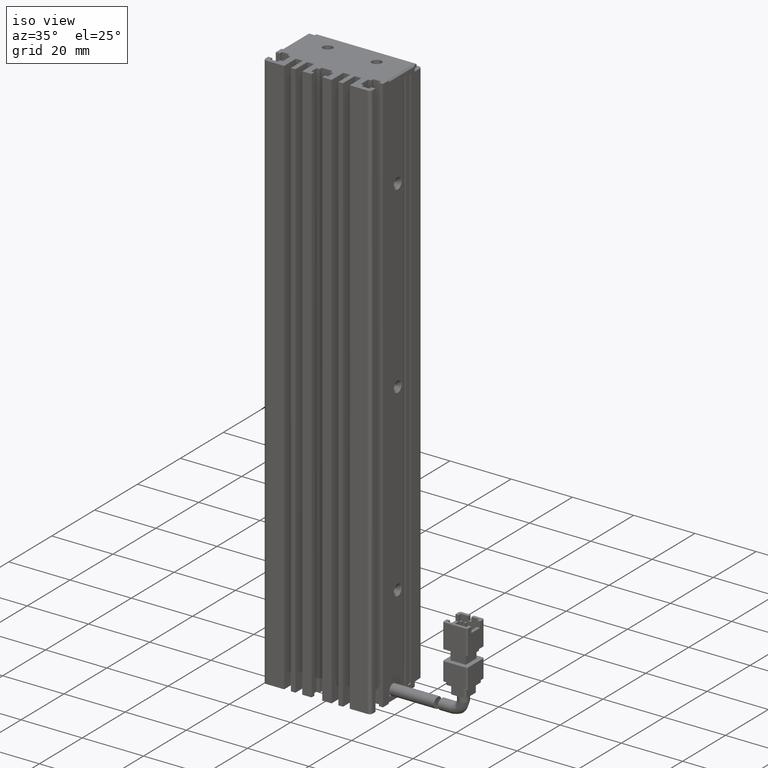
[diagram: clean part render]
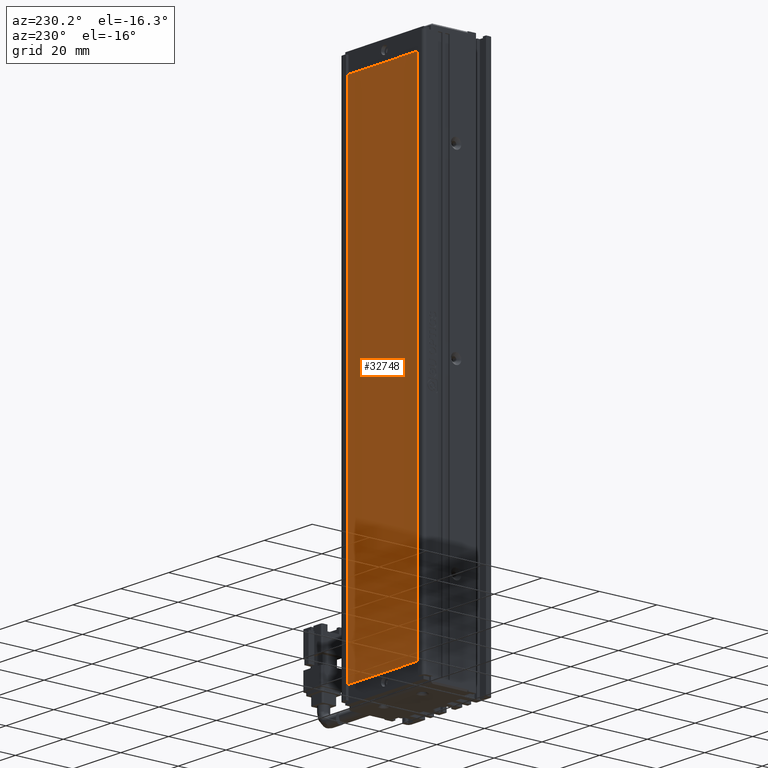
[diagram: tour spotlight — one face highlighted and labeled with its STEP entity id]
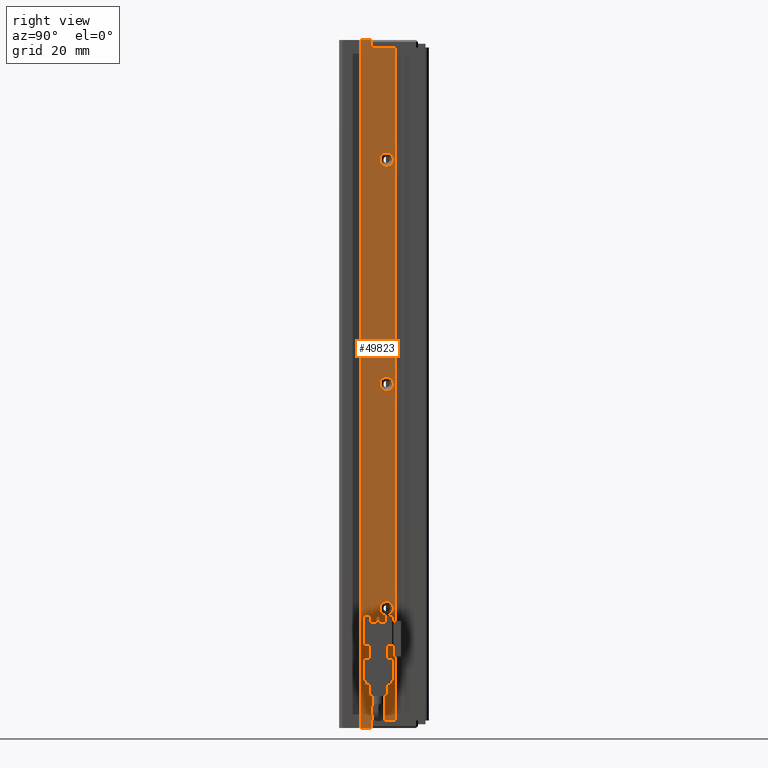
[diagram: tour spotlight — one face highlighted and labeled with its STEP entity id]
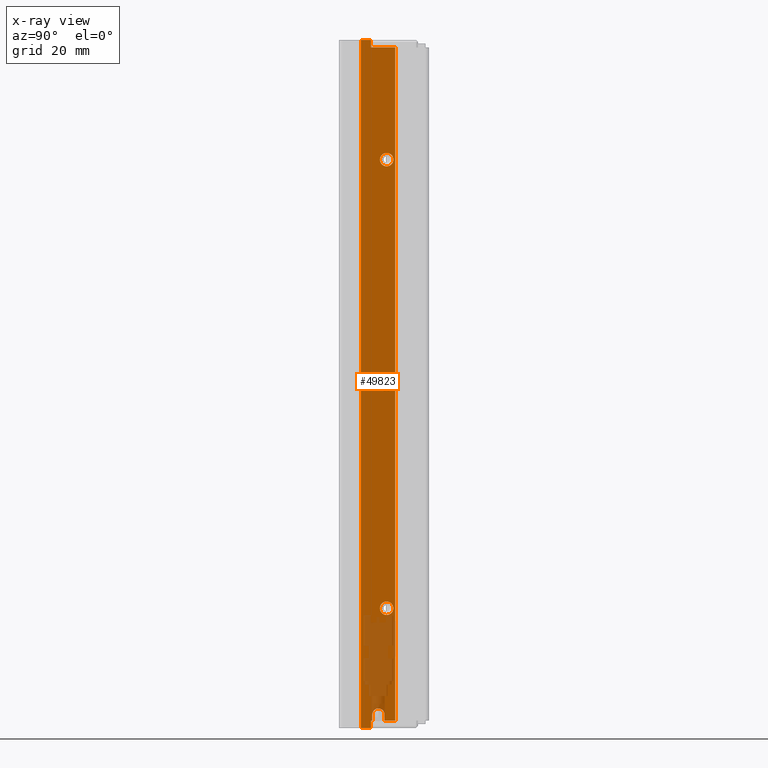
[diagram: x-ray of the same camera — body ghosted, this tour face saturated]
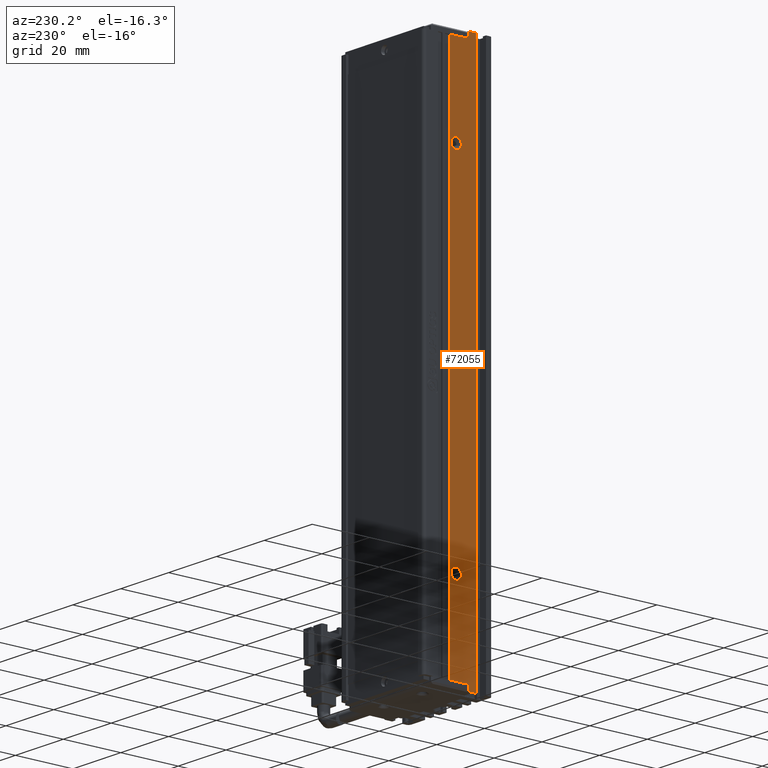
[diagram: tour spotlight — one face highlighted and labeled with its STEP entity id]
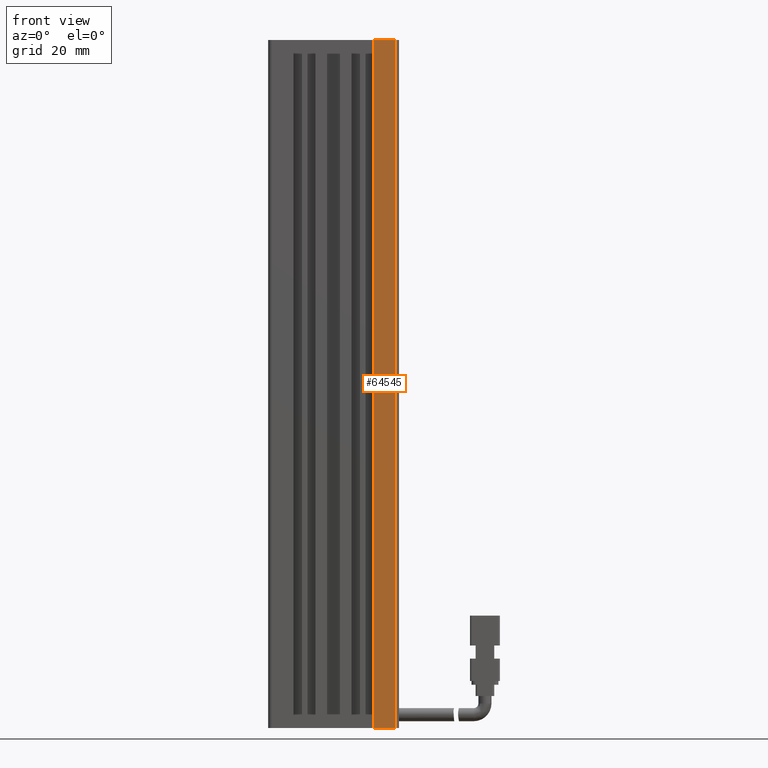
[diagram: tour spotlight — one face highlighted and labeled with its STEP entity id]
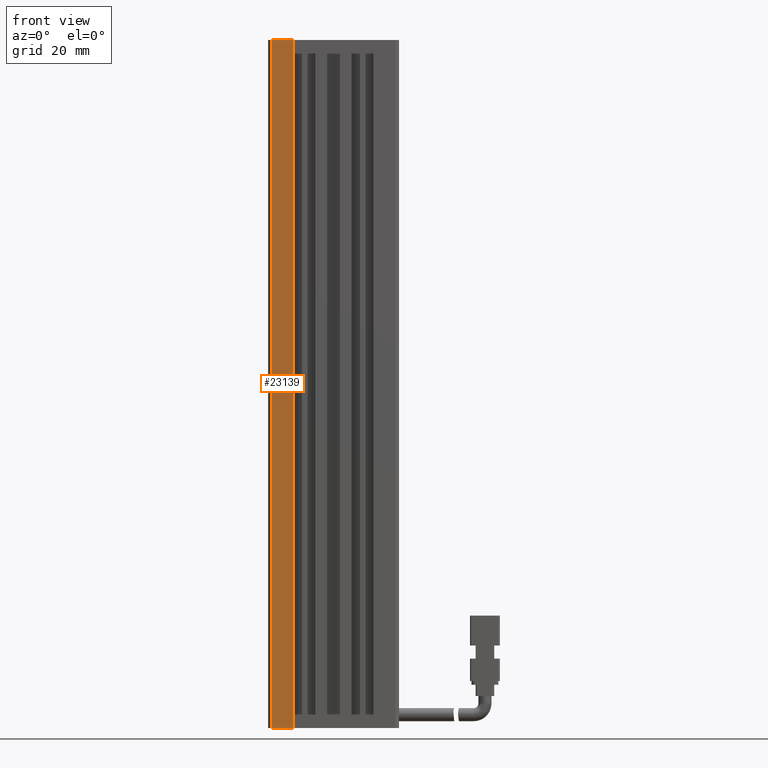
[diagram: tour spotlight — one face highlighted and labeled with its STEP entity id]
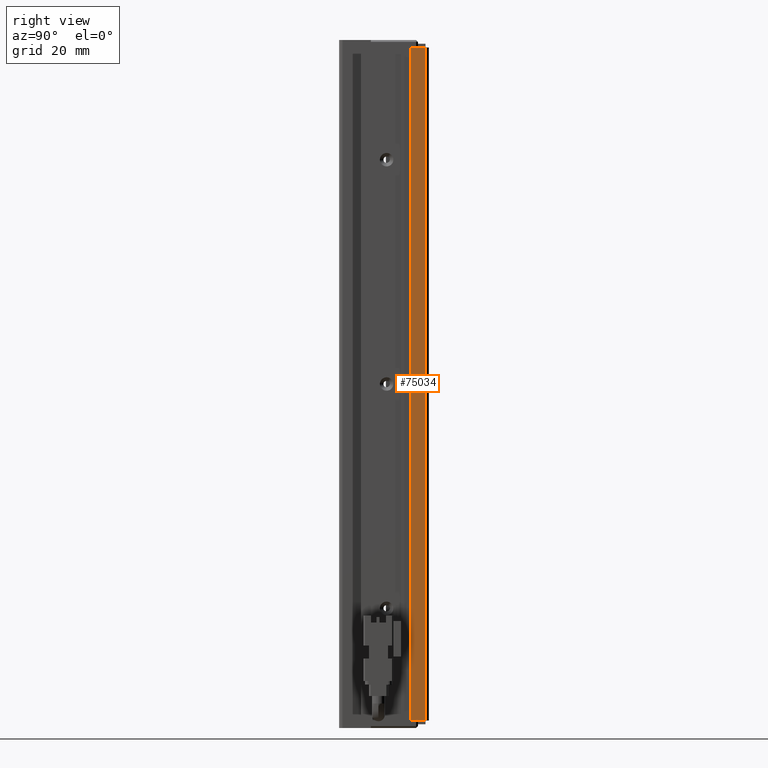
[diagram: tour spotlight — one face highlighted and labeled with its STEP entity id]
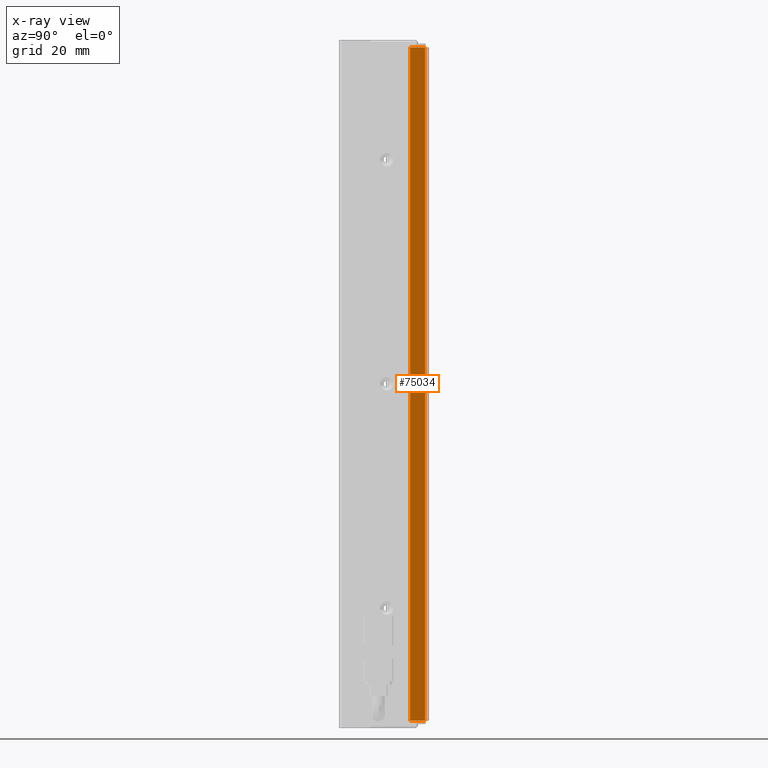
[diagram: x-ray of the same camera — body ghosted, this tour face saturated]
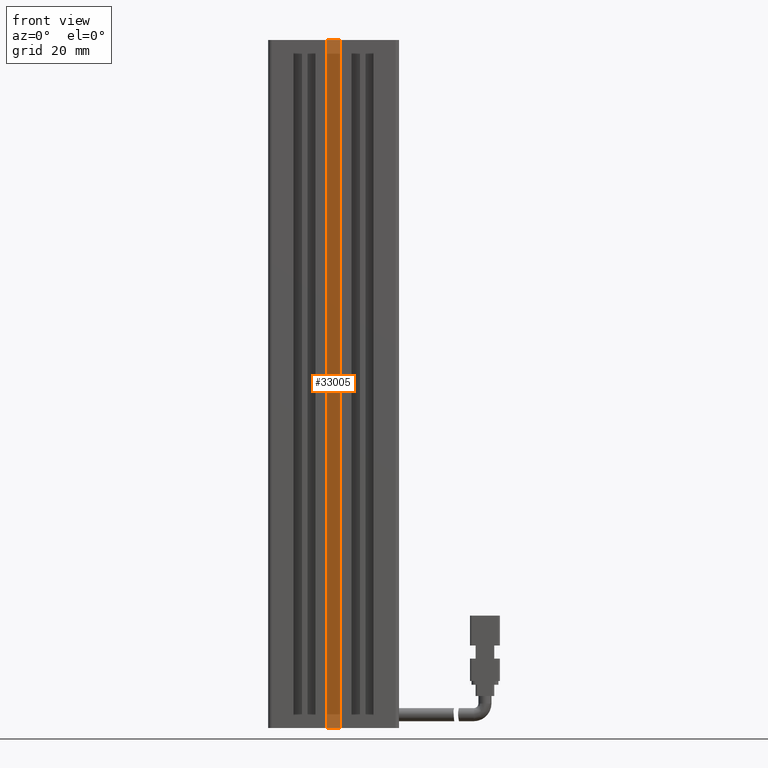
[diagram: tour spotlight — one face highlighted and labeled with its STEP entity id]
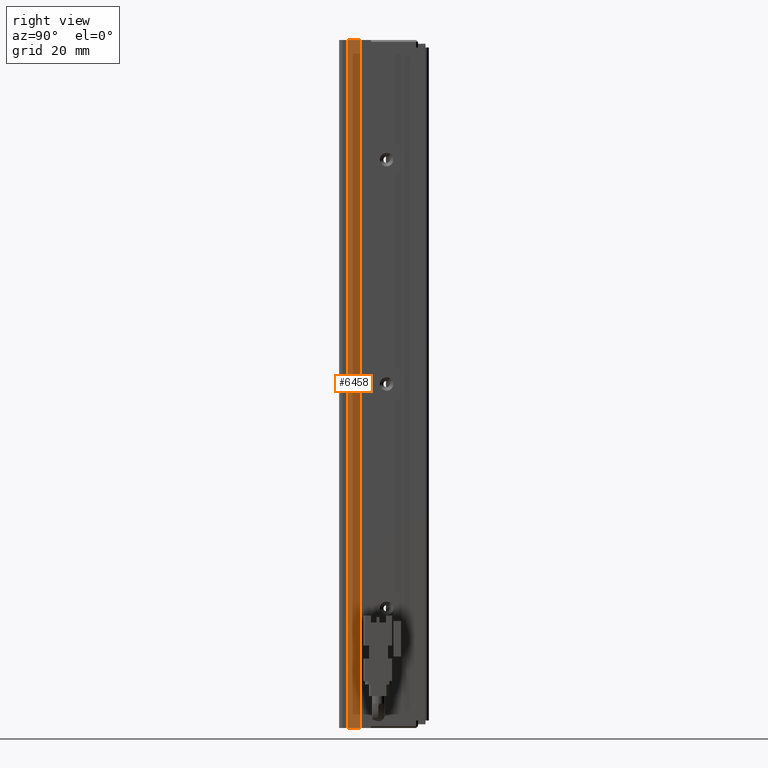
[diagram: tour spotlight — one face highlighted and labeled with its STEP entity id]
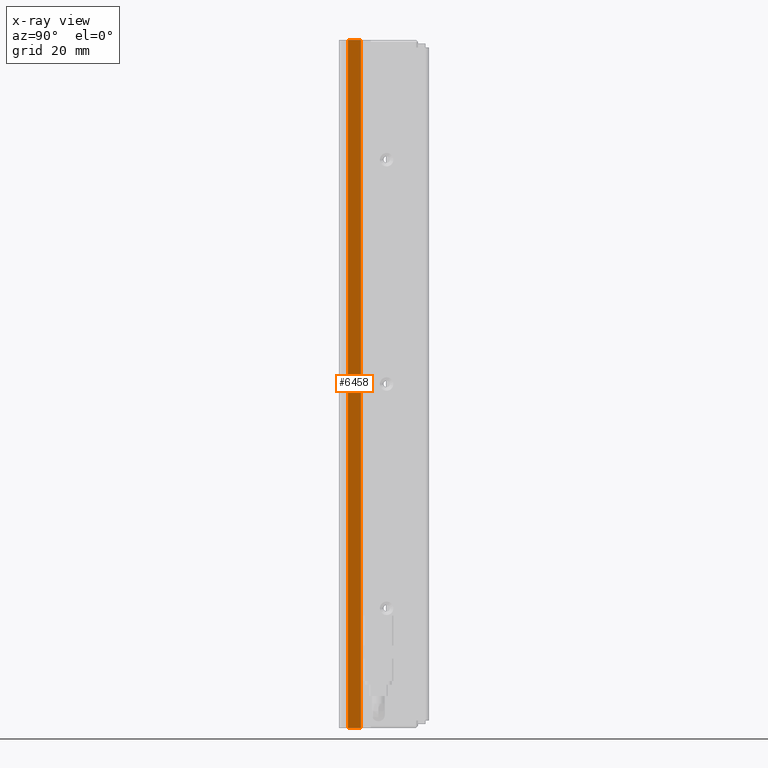
[diagram: x-ray of the same camera — body ghosted, this tour face saturated]
A machine part: a face-by-face anatomy tour. The part has 1721 B-rep faces; the first image is the clean iso view, then the 8 largest visible faces are spotlighted one at a time (largest first), each with its STEP entity span.

Face 1 — auxiliary view, entity #32748. In plain terms, the highlighted planar face has unit normal (0, 1, 0).
Definition (entity closure, byte-faithful):
#1154 = LINE ( 'NONE', #66181, #8746 ) ;
#5090 = ORIENTED_EDGE ( 'NONE', *, *, #13516, .T. ) ;
#8746 = VECTOR ( 'NONE', #60288, 1000.000000000000000 ) ;
#10738 = CARTESIAN_POINT ( 'NONE',  ( 25.93512251846635100, 34.29073232304837400, -30.53415309237264500 ) ) ;
#12682 = VERTEX_POINT ( 'NONE', #63379 ) ;
#13516 = EDGE_CURVE ( 'NONE', #58869, #12682, #1154, .T. ) ;
#14053 = LINE ( 'NONE', #27444, #28375 ) ;
#18898 = VECTOR ( 'NONE', #54965, 1000.000000000000000 ) ;
#19822 = VECTOR ( 'NONE', #47434, 1000.000000000000000 ) ;
#22951 = CARTESIAN_POINT ( 'NONE',  ( 25.93512251846635100, 34.29073232304837400, -30.53415309237264500 ) ) ;
#26302 = DIRECTION ( 'NONE',  ( 0.0000000000000000000, 1.000000000000000000, 0.0000000000000000000 ) ) ;
#27444 = CARTESIAN_POINT ( 'NONE',  ( 25.93512251846632900, 34.29073232304837400, -200.5341530923726600 ) ) ;
#28375 = VECTOR ( 'NONE', #51730, 1000.000000000000000 ) ;
#32748 = ADVANCED_FACE ( 'NONE', ( #45679 ), #68385, .T. ) ;
#32812 = EDGE_LOOP ( 'NONE', ( #68493, #5090, #77369, #69553 ) ) ;
#43367 = EDGE_CURVE ( 'NONE', #50928, #58869, #76067, .T. ) ;
#45679 = FACE_OUTER_BOUND ( 'NONE', #32812, .T. ) ;
#47434 = DIRECTION ( 'NONE',  ( 1.000000000000000000, 0.0000000000000000000, 0.0000000000000000000 ) ) ;
#49878 = AXIS2_PLACEMENT_3D ( 'NONE', #62485, #26302, #62761 ) ;
#50928 = VERTEX_POINT ( 'NONE', #76362 ) ;
#51730 = DIRECTION ( 'NONE',  ( 1.224510688924804800E-016, 0.0000000000000000000, 1.000000000000000000 ) ) ;
#54965 = DIRECTION ( 'NONE',  ( 0.0000000000000000000, 0.0000000000000000000, -1.000000000000000000 ) ) ;
#58869 = VERTEX_POINT ( 'NONE', #75019 ) ;
#60288 = DIRECTION ( 'NONE',  ( -1.000000000000000000, 0.0000000000000000000, 0.0000000000000000000 ) ) ;
#61836 = CARTESIAN_POINT ( 'NONE',  ( 55.93512251846632900, 34.29073232304837400, -30.53415309237264500 ) ) ;
#62485 = CARTESIAN_POINT ( 'NONE',  ( 0.0000000000000000000, 34.29073232304837400, 0.0000000000000000000 ) ) ;
#62761 = DIRECTION ( 'NONE',  ( 0.0000000000000000000, -0.0000000000000000000, 1.000000000000000000 ) ) ;
#63379 = CARTESIAN_POINT ( 'NONE',  ( 25.93512251846632900, 34.29073232304837400, -200.5341530923726600 ) ) ;
#63424 = EDGE_CURVE ( 'NONE', #12682, #72988, #14053, .T. ) ;
#66181 = CARTESIAN_POINT ( 'NONE',  ( 55.93512251846632900, 34.29073232304837400, -200.5341530923726600 ) ) ;
#67284 = EDGE_CURVE ( 'NONE', #72988, #50928, #70370, .T. ) ;
#68385 = PLANE ( 'NONE',  #49878 ) ;
#68493 = ORIENTED_EDGE ( 'NONE', *, *, #43367, .T. ) ;
#69553 = ORIENTED_EDGE ( 'NONE', *, *, #67284, .T. ) ;
#70370 = LINE ( 'NONE', #22951, #19822 ) ;
#72988 = VERTEX_POINT ( 'NONE', #10738 ) ;
#75019 = CARTESIAN_POINT ( 'NONE',  ( 55.93512251846632900, 34.29073232304837400, -200.5341530923726600 ) ) ;
#76067 = LINE ( 'NONE', #61836, #18898 ) ;
#76362 = CARTESIAN_POINT ( 'NONE',  ( 55.93512251846632900, 34.29073232304837400, -30.53415309237264500 ) ) ;
#77369 = ORIENTED_EDGE ( 'NONE', *, *, #63424, .T. ) ;

Face 2 — right view, entity #49823. An x-ray twin of the same camera follows (body ghosted, this face saturated) — the face is partly hidden behind the body. In plain terms, the highlighted planar face has unit normal (-1, 0, 0).
Definition (entity closure, byte-faithful):
#2157 = CARTESIAN_POINT ( 'NONE',  ( 58.42537974683542500, 25.99073232304837700, -205.0000000000000300 ) ) ;
#3171 = ORIENTED_EDGE ( 'NONE', *, *, #4362, .T. ) ;
#3521 = VERTEX_POINT ( 'NONE', #37839 ) ;
#4362 = EDGE_CURVE ( 'NONE', #64369, #72195, #54547, .T. ) ;
#4911 = VERTEX_POINT ( 'NONE', #27718 ) ;
#5736 = FACE_OUTER_BOUND ( 'NONE', #64731, .T. ) ;
#6306 = VERTEX_POINT ( 'NONE', #57838 ) ;
#6882 = CARTESIAN_POINT ( 'NONE',  ( 58.42537974683542500, 25.99073232304837700, -23.00000000000000700 ) ) ;
#7171 = CARTESIAN_POINT ( 'NONE',  ( 58.42537974683542500, 19.49073232304837000, -22.99999999999999300 ) ) ;
#8067 = CARTESIAN_POINT ( 'NONE',  ( 58.42537974687635200, 23.69073232304837300, -116.8000000000597500 ) ) ;
#9161 = DIRECTION ( 'NONE',  ( 1.000000000000000000, 0.0000000000000000000, 0.0000000000000000000 ) ) ;
#9857 = AXIS2_PLACEMENT_3D ( 'NONE', #13528, #26315, #74485 ) ;
#10019 = DIRECTION ( 'NONE',  ( -0.0000000000000000000, 0.0000000000000000000, 1.000000000000000000 ) ) ;
#10352 = CIRCLE ( 'NONE', #57596, 1.800000000000634400 ) ;
#10812 = CARTESIAN_POINT ( 'NONE',  ( 58.42537974683541800, 23.14073232304837200, -203.4500000000000200 ) ) ;
#11545 = EDGE_CURVE ( 'NONE', #4911, #49703, #23772, .T. ) ;
#11555 = CARTESIAN_POINT ( 'NONE',  ( 58.42537974683542500, 7.083797468354437600, -23.00000000000000700 ) ) ;
#11629 = EDGE_CURVE ( 'NONE', #12416, #51153, #77992, .T. ) ;
#12198 = CIRCLE ( 'NONE', #46836, 1.800000000005186300 ) ;
#12416 = VERTEX_POINT ( 'NONE', #18926 ) ;
#12452 = LINE ( 'NONE', #37724, #42950 ) ;
#13528 = CARTESIAN_POINT ( 'NONE',  ( 58.42537974681950900, 23.69073232304836900, -55.00000000000000700 ) ) ;
#13615 = ORIENTED_EDGE ( 'NONE', *, *, #44215, .F. ) ;
#14432 = ORIENTED_EDGE ( 'NONE', *, *, #56520, .F. ) ;
#15537 = CARTESIAN_POINT ( 'NONE',  ( 58.42537974683542500, 19.49073232304837000, -23.00000000000000700 ) ) ;
#15986 = AXIS2_PLACEMENT_3D ( 'NONE', #67899, #18867, #50337 ) ;
#17448 = ORIENTED_EDGE ( 'NONE', *, *, #71468, .F. ) ;
#17635 = LINE ( 'NONE', #6882, #22409 ) ;
#17870 = DIRECTION ( 'NONE',  ( 0.0000000000000000000, 0.0000000000000000000, -1.000000000000000000 ) ) ;
#18867 = DIRECTION ( 'NONE',  ( 1.000000000000000000, 0.0000000000000000000, 0.0000000000000000000 ) ) ;
#18926 = CARTESIAN_POINT ( 'NONE',  ( 58.42537974681950900, 23.69073232304836900, -176.8000000000051800 ) ) ;
#19357 = DIRECTION ( 'NONE',  ( -0.0000000000000000000, -0.0000000000000000000, -1.000000000000000000 ) ) ;
#20624 = DIRECTION ( 'NONE',  ( 0.0000000000000000000, 0.0000000000000000000, 1.000000000000000000 ) ) ;
#20927 = FACE_BOUND ( 'NONE', #41268, .T. ) ;
#21348 = LINE ( 'NONE', #11555, #46127 ) ;
#21382 = PLANE ( 'NONE',  #77771 ) ;
#21913 = FACE_BOUND ( 'NONE', #64342, .T. ) ;
#22327 = VERTEX_POINT ( 'NONE', #38947 ) ;
#22409 = VECTOR ( 'NONE', #19357, 1000.000000000000000 ) ;
#23772 = LINE ( 'NONE', #36636, #60010 ) ;
#25266 = LINE ( 'NONE', #50898, #70088 ) ;
#25504 = VECTOR ( 'NONE', #10019, 1000.000000000000000 ) ;
#26315 = DIRECTION ( 'NONE',  ( 1.000000000000000000, 0.0000000000000000000, 0.0000000000000000000 ) ) ;
#26372 = DIRECTION ( 'NONE',  ( 0.0000000000000000000, 1.000000000000000000, -0.0000000000000000000 ) ) ;
#26947 = CARTESIAN_POINT ( 'NONE',  ( 58.42537974681950900, 23.69073232304836900, -53.19999999999937000 ) ) ;
#27184 = CARTESIAN_POINT ( 'NONE',  ( 58.42537974683542500, 19.84073232304837100, -205.0000000000000300 ) ) ;
#27299 = DIRECTION ( 'NONE',  ( -1.000000000000000000, 0.0000000000000000000, 0.0000000000000000000 ) ) ;
#27398 = VERTEX_POINT ( 'NONE', #75374 ) ;
#27718 = CARTESIAN_POINT ( 'NONE',  ( 58.42537974683542500, 19.84073232304836800, -205.0000000000000300 ) ) ;
#27800 = EDGE_CURVE ( 'NONE', #56242, #6306, #44167, .T. ) ;
#28518 = ORIENTED_EDGE ( 'NONE', *, *, #55199, .T. ) ;
#28721 = EDGE_CURVE ( 'NONE', #27398, #36325, #10352, .T. ) ;
#29011 = DIRECTION ( 'NONE',  ( 1.000000000000000000, 0.0000000000000000000, 0.0000000000000000000 ) ) ;
#29279 = DIRECTION ( 'NONE',  ( 0.0000000000000000000, 0.0000000000000000000, -1.000000000000000000 ) ) ;
#31216 = EDGE_CURVE ( 'NONE', #36325, #27398, #50599, .T. ) ;
#32138 = DIRECTION ( 'NONE',  ( -0.0000000000000000000, -1.000000000000000000, 0.0000000000000000000 ) ) ;
#32224 = EDGE_CURVE ( 'NONE', #4911, #68537, #54446, .T. ) ;
#32895 = VERTEX_POINT ( 'NONE', #65424 ) ;
#33479 = CIRCLE ( 'NONE', #56109, 1.800000000059753800 ) ;
#33752 = ORIENTED_EDGE ( 'NONE', *, *, #28721, .F. ) ;
#35370 = ORIENTED_EDGE ( 'NONE', *, *, #43973, .F. ) ;
#35984 = CARTESIAN_POINT ( 'NONE',  ( 58.42537974681950900, 23.69073232304836900, -175.0000000000000000 ) ) ;
#36263 = FACE_BOUND ( 'NONE', #76310, .T. ) ;
#36325 = VERTEX_POINT ( 'NONE', #26947 ) ;
#36636 = CARTESIAN_POINT ( 'NONE',  ( 58.42537974683542500, 7.083797468354437600, -205.0000000000000300 ) ) ;
#36776 = DIRECTION ( 'NONE',  ( 0.0000000000000000000, 0.0000000000000000000, -1.000000000000000000 ) ) ;
#37724 = CARTESIAN_POINT ( 'NONE',  ( 58.42537974683542500, 7.083797468354437600, -207.0000000000000300 ) ) ;
#37839 = CARTESIAN_POINT ( 'NONE',  ( 58.42537974683542500, 19.49073232304837000, -207.0000000000000300 ) ) ;
#38256 = EDGE_CURVE ( 'NONE', #62322, #68537, #65174, .T. ) ;
#38947 = CARTESIAN_POINT ( 'NONE',  ( 58.42537974683542500, 16.79073232304836700, -22.99999999999999300 ) ) ;
#39305 = DIRECTION ( 'NONE',  ( 0.0000000000000000000, 0.0000000000000000000, -1.000000000000000000 ) ) ;
#40650 = ORIENTED_EDGE ( 'NONE', *, *, #32224, .T. ) ;
#41268 = EDGE_LOOP ( 'NONE', ( #33752, #45455 ) ) ;
#42667 = EDGE_CURVE ( 'NONE', #64476, #56108, #33479, .T. ) ;
#42950 = VECTOR ( 'NONE', #32138, 1000.000000000000000 ) ;
#43119 = DIRECTION ( 'NONE',  ( 1.000000000000000000, 0.0000000000000000000, 0.0000000000000000000 ) ) ;
#43196 = DIRECTION ( 'NONE',  ( 1.000000000000000000, 0.0000000000000000000, 0.0000000000000000000 ) ) ;
#43973 = EDGE_CURVE ( 'NONE', #56108, #64476, #54616, .T. ) ;
#44167 = LINE ( 'NONE', #55893, #63239 ) ;
#44215 = EDGE_CURVE ( 'NONE', #32895, #22327, #66915, .T. ) ;
#45455 = ORIENTED_EDGE ( 'NONE', *, *, #31216, .F. ) ;
#45509 = DIRECTION ( 'NONE',  ( 0.0000000000000000000, 0.0000000000000000000, 1.000000000000000000 ) ) ;
#45683 = DIRECTION ( 'NONE',  ( -0.0000000000000000000, 0.0000000000000000000, 1.000000000000000000 ) ) ;
#45991 = ORIENTED_EDGE ( 'NONE', *, *, #11545, .F. ) ;
#46127 = VECTOR ( 'NONE', #77551, 1000.000000000000000 ) ;
#46225 = ORIENTED_EDGE ( 'NONE', *, *, #77646, .F. ) ;
#46836 = AXIS2_PLACEMENT_3D ( 'NONE', #35984, #43119, #36776 ) ;
#46929 = DIRECTION ( 'NONE',  ( 1.000000000000000000, 5.687617954022316600E-016, -0.0000000000000000000 ) ) ;
#47766 = ORIENTED_EDGE ( 'NONE', *, *, #38256, .F. ) ;
#49699 = EDGE_CURVE ( 'NONE', #3521, #32895, #12452, .T. ) ;
#49703 = VERTEX_POINT ( 'NONE', #74659 ) ;
#49823 = ADVANCED_FACE ( 'NONE', ( #21913, #36263, #5736, #20927 ), #21382, .F. ) ;
#50337 = DIRECTION ( 'NONE',  ( 0.0000000000000000000, 0.0000000000000000000, -1.000000000000000000 ) ) ;
#50599 = CIRCLE ( 'NONE', #9857, 1.800000000000634400 ) ;
#50716 = CARTESIAN_POINT ( 'NONE',  ( 58.42537974683542500, 19.49073232304837000, -24.99999999999999300 ) ) ;
#50753 = VECTOR ( 'NONE', #45509, 1000.000000000000000 ) ;
#50898 = CARTESIAN_POINT ( 'NONE',  ( 58.42537974683542500, 7.083797468354437600, -25.00000000000000700 ) ) ;
#51153 = VERTEX_POINT ( 'NONE', #55284 ) ;
#52589 = DIRECTION ( 'NONE',  ( 0.0000000000000000000, 1.000000000000000000, 0.0000000000000000000 ) ) ;
#53944 = CARTESIAN_POINT ( 'NONE',  ( 58.42537974683542500, 23.14073232304836500, -205.0000000000000300 ) ) ;
#54446 = LINE ( 'NONE', #27184, #73470 ) ;
#54547 = LINE ( 'NONE', #15537, #74537 ) ;
#54616 = CIRCLE ( 'NONE', #15986, 1.800000000059753800 ) ;
#54978 = DIRECTION ( 'NONE',  ( -0.0000000000000000000, -1.000000000000000000, 0.0000000000000000000 ) ) ;
#55199 = EDGE_CURVE ( 'NONE', #3521, #49703, #62725, .T. ) ;
#55284 = CARTESIAN_POINT ( 'NONE',  ( 58.42537974681950900, 23.69073232304836900, -173.1999999999948200 ) ) ;
#55517 = CARTESIAN_POINT ( 'NONE',  ( 58.42537974683541800, 19.84073232304836800, -203.4500000000000200 ) ) ;
#55893 = CARTESIAN_POINT ( 'NONE',  ( 58.42537974683542500, 7.083797468354437600, -205.0000000000000300 ) ) ;
#55978 = ORIENTED_EDGE ( 'NONE', *, *, #11629, .F. ) ;
#56108 = VERTEX_POINT ( 'NONE', #74030 ) ;
#56109 = AXIS2_PLACEMENT_3D ( 'NONE', #59601, #29011, #29279 ) ;
#56242 = VERTEX_POINT ( 'NONE', #2157 ) ;
#56520 = EDGE_CURVE ( 'NONE', #78653, #56242, #17635, .T. ) ;
#56796 = EDGE_CURVE ( 'NONE', #62322, #6306, #66138, .T. ) ;
#57596 = AXIS2_PLACEMENT_3D ( 'NONE', #73784, #43196, #17870 ) ;
#57838 = CARTESIAN_POINT ( 'NONE',  ( 58.42537974683542500, 23.14073232304836500, -205.0000000000000300 ) ) ;
#58401 = ORIENTED_EDGE ( 'NONE', *, *, #42667, .F. ) ;
#59193 = CARTESIAN_POINT ( 'NONE',  ( 58.42537974683541800, 21.49073232304837000, -203.4500000000000200 ) ) ;
#59601 = CARTESIAN_POINT ( 'NONE',  ( 58.42537974687635200, 23.69073232304837300, -115.0000000000000000 ) ) ;
#60010 = VECTOR ( 'NONE', #54978, 1000.000000000000000 ) ;
#61150 = AXIS2_PLACEMENT_3D ( 'NONE', #59193, #46929, #52589 ) ;
#61292 = CARTESIAN_POINT ( 'NONE',  ( 58.42537974683542500, 25.99073232304837700, -24.99999999999999300 ) ) ;
#62322 = VERTEX_POINT ( 'NONE', #10812 ) ;
#62725 = LINE ( 'NONE', #65133, #25504 ) ;
#63105 = DIRECTION ( 'NONE',  ( -0.0000000000000000000, -1.119176436114072200E-015, 1.000000000000000000 ) ) ;
#63239 = VECTOR ( 'NONE', #67086, 1000.000000000000000 ) ;
#63376 = AXIS2_PLACEMENT_3D ( 'NONE', #75710, #9161, #39305 ) ;
#64224 = VECTOR ( 'NONE', #64892, 1000.000000000000000 ) ;
#64342 = EDGE_LOOP ( 'NONE', ( #55978, #46225 ) ) ;
#64369 = VERTEX_POINT ( 'NONE', #50716 ) ;
#64476 = VERTEX_POINT ( 'NONE', #8067 ) ;
#64731 = EDGE_LOOP ( 'NONE', ( #40650, #47766, #66774, #75591, #14432, #17448, #3171, #71083, #13615, #65817, #28518, #45991 ) ) ;
#64892 = DIRECTION ( 'NONE',  ( -0.0000000000000000000, -2.238352872228144400E-015, -1.000000000000000000 ) ) ;
#65133 = CARTESIAN_POINT ( 'NONE',  ( 58.42537974683542500, 19.49073232304837000, -23.00000000000000700 ) ) ;
#65174 = CIRCLE ( 'NONE', #61150, 1.650000000000002100 ) ;
#65424 = CARTESIAN_POINT ( 'NONE',  ( 58.42537974683542500, 16.79073232304836700, -207.0000000000000300 ) ) ;
#65817 = ORIENTED_EDGE ( 'NONE', *, *, #49699, .F. ) ;
#66138 = LINE ( 'NONE', #53944, #64224 ) ;
#66774 = ORIENTED_EDGE ( 'NONE', *, *, #56796, .T. ) ;
#66915 = LINE ( 'NONE', #69725, #50753 ) ;
#67086 = DIRECTION ( 'NONE',  ( -0.0000000000000000000, -1.000000000000000000, 0.0000000000000000000 ) ) ;
#67899 = CARTESIAN_POINT ( 'NONE',  ( 58.42537974687635200, 23.69073232304837300, -115.0000000000000000 ) ) ;
#68537 = VERTEX_POINT ( 'NONE', #55517 ) ;
#68910 = EDGE_CURVE ( 'NONE', #22327, #72195, #21348, .T. ) ;
#69725 = CARTESIAN_POINT ( 'NONE',  ( 58.42537974683542500, 16.79073232304836700, -23.00000000000000700 ) ) ;
#70088 = VECTOR ( 'NONE', #26372, 1000.000000000000000 ) ;
#71083 = ORIENTED_EDGE ( 'NONE', *, *, #68910, .F. ) ;
#71468 = EDGE_CURVE ( 'NONE', #64369, #78653, #25266, .T. ) ;
#72195 = VERTEX_POINT ( 'NONE', #7171 ) ;
#73470 = VECTOR ( 'NONE', #63105, 1000.000000000000000 ) ;
#73784 = CARTESIAN_POINT ( 'NONE',  ( 58.42537974681950900, 23.69073232304836900, -55.00000000000000700 ) ) ;
#74030 = CARTESIAN_POINT ( 'NONE',  ( 58.42537974687635200, 23.69073232304837300, -113.1999999999402500 ) ) ;
#74485 = DIRECTION ( 'NONE',  ( 0.0000000000000000000, 0.0000000000000000000, -1.000000000000000000 ) ) ;
#74537 = VECTOR ( 'NONE', #45683, 1000.000000000000000 ) ;
#74659 = CARTESIAN_POINT ( 'NONE',  ( 58.42537974683542500, 19.49073232304837000, -205.0000000000000300 ) ) ;
#75374 = CARTESIAN_POINT ( 'NONE',  ( 58.42537974681950900, 23.69073232304836900, -56.80000000000064400 ) ) ;
#75591 = ORIENTED_EDGE ( 'NONE', *, *, #27800, .F. ) ;
#75710 = CARTESIAN_POINT ( 'NONE',  ( 58.42537974681950900, 23.69073232304836900, -175.0000000000000000 ) ) ;
#76310 = EDGE_LOOP ( 'NONE', ( #58401, #35370 ) ) ;
#76508 = CARTESIAN_POINT ( 'NONE',  ( 58.42537974683542500, 7.083797468354437600, -23.00000000000000700 ) ) ;
#77551 = DIRECTION ( 'NONE',  ( 0.0000000000000000000, 1.000000000000000000, -0.0000000000000000000 ) ) ;
#77646 = EDGE_CURVE ( 'NONE', #51153, #12416, #12198, .T. ) ;
#77771 = AXIS2_PLACEMENT_3D ( 'NONE', #76508, #27299, #20624 ) ;
#77992 = CIRCLE ( 'NONE', #63376, 1.800000000005186300 ) ;
#78653 = VERTEX_POINT ( 'NONE', #61292 ) ;

Face 3 — auxiliary view, entity #72055. In plain terms, the highlighted planar face has unit normal (-1, 0, 0).
Definition (entity closure, byte-faithful):
#79 = ORIENTED_EDGE ( 'NONE', *, *, #22359, .T. ) ;
#770 = VERTEX_POINT ( 'NONE', #37750 ) ;
#1111 = CARTESIAN_POINT ( 'NONE',  ( 23.42537974683542100, 16.79073232304837400, -207.0000000000000300 ) ) ;
#1260 = FACE_OUTER_BOUND ( 'NONE', #17817, .T. ) ;
#1581 = CIRCLE ( 'NONE', #20167, 1.800000000059753800 ) ;
#2126 = EDGE_CURVE ( 'NONE', #74190, #44316, #29581, .T. ) ;
#3463 = CARTESIAN_POINT ( 'NONE',  ( 23.42537974685134100, 23.69073232304836900, -56.80000000000519100 ) ) ;
#3762 = DIRECTION ( 'NONE',  ( 0.0000000000000000000, -0.0000000000000000000, -1.000000000000000000 ) ) ;
#3854 = DIRECTION ( 'NONE',  ( 0.0000000000000000000, 0.0000000000000000000, 1.000000000000000000 ) ) ;
#7368 = VERTEX_POINT ( 'NONE', #53334 ) ;
#8285 = DIRECTION ( 'NONE',  ( -0.0000000000000000000, -0.0000000000000000000, -1.000000000000000000 ) ) ;
#9457 = DIRECTION ( 'NONE',  ( 0.0000000000000000000, 0.0000000000000000000, 1.000000000000000000 ) ) ;
#9775 = VERTEX_POINT ( 'NONE', #35599 ) ;
#9922 = EDGE_LOOP ( 'NONE', ( #76355, #26073 ) ) ;
#10023 = CARTESIAN_POINT ( 'NONE',  ( 23.42537974683542100, 16.79073232304837400, -22.99999999999999300 ) ) ;
#11399 = AXIS2_PLACEMENT_3D ( 'NONE', #20850, #75678, #51538 ) ;
#11554 = CARTESIAN_POINT ( 'NONE',  ( 23.42537974685134100, 23.69073232304836900, -176.8000000000006400 ) ) ;
#12204 = CARTESIAN_POINT ( 'NONE',  ( 23.42537974683542100, 7.083797468354437600, -205.0000000000000300 ) ) ;
#12394 = EDGE_CURVE ( 'NONE', #59545, #66803, #56809, .T. ) ;
#12718 = ORIENTED_EDGE ( 'NONE', *, *, #38167, .T. ) ;
#13613 = EDGE_CURVE ( 'NONE', #29557, #14197, #76335, .T. ) ;
#14197 = VERTEX_POINT ( 'NONE', #1111 ) ;
#15731 = DIRECTION ( 'NONE',  ( 0.0000000000000000000, 0.0000000000000000000, 1.000000000000000000 ) ) ;
#16066 = LINE ( 'NONE', #59089, #78904 ) ;
#16140 = AXIS2_PLACEMENT_3D ( 'NONE', #46380, #29105, #15731 ) ;
#17329 = DIRECTION ( 'NONE',  ( 1.000000000000000000, -0.0000000000000000000, -0.0000000000000000000 ) ) ;
#17817 = EDGE_LOOP ( 'NONE', ( #12718, #54014, #30574, #48530, #38296, #79, #40534, #31854 ) ) ;
#18573 = AXIS2_PLACEMENT_3D ( 'NONE', #34263, #57414, #9457 ) ;
#19855 = CARTESIAN_POINT ( 'NONE',  ( 23.42537974683542100, 19.49073232304836600, -22.99999999999999300 ) ) ;
#20167 = AXIS2_PLACEMENT_3D ( 'NONE', #64548, #40323, #3854 ) ;
#20850 = CARTESIAN_POINT ( 'NONE',  ( 23.42537974685134100, 23.69073232304836900, -55.00000000000000700 ) ) ;
#22359 = EDGE_CURVE ( 'NONE', #9775, #29557, #16066, .T. ) ;
#22885 = DIRECTION ( 'NONE',  ( 0.0000000000000000000, -0.0000000000000000000, -1.000000000000000000 ) ) ;
#23849 = VERTEX_POINT ( 'NONE', #30109 ) ;
#24045 = FACE_BOUND ( 'NONE', #36931, .T. ) ;
#24493 = LINE ( 'NONE', #25219, #36924 ) ;
#25160 = LINE ( 'NONE', #33187, #38605 ) ;
#25219 = CARTESIAN_POINT ( 'NONE',  ( 23.42537974683542100, 16.79073232304837400, -23.00000000000000700 ) ) ;
#26073 = ORIENTED_EDGE ( 'NONE', *, *, #71118, .T. ) ;
#28114 = PLANE ( 'NONE',  #18573 ) ;
#29105 = DIRECTION ( 'NONE',  ( 1.000000000000000000, -0.0000000000000000000, -0.0000000000000000000 ) ) ;
#29433 = EDGE_CURVE ( 'NONE', #14197, #57560, #24493, .T. ) ;
#29557 = VERTEX_POINT ( 'NONE', #75978 ) ;
#29581 = CIRCLE ( 'NONE', #61266, 1.800000000005186300 ) ;
#30109 = CARTESIAN_POINT ( 'NONE',  ( 23.42537974683542100, 25.99073232304837300, -205.0000000000000300 ) ) ;
#30574 = ORIENTED_EDGE ( 'NONE', *, *, #12394, .T. ) ;
#31854 = ORIENTED_EDGE ( 'NONE', *, *, #29433, .T. ) ;
#33187 = CARTESIAN_POINT ( 'NONE',  ( 23.42537974683542100, 7.083797468354437600, -23.00000000000000700 ) ) ;
#34263 = CARTESIAN_POINT ( 'NONE',  ( 23.42537974683542100, 7.083797468354437600, -23.00000000000000700 ) ) ;
#34294 = ORIENTED_EDGE ( 'NONE', *, *, #41273, .T. ) ;
#34762 = EDGE_CURVE ( 'NONE', #66803, #23849, #47093, .T. ) ;
#35599 = CARTESIAN_POINT ( 'NONE',  ( 23.42537974683542100, 19.49073232304836600, -205.0000000000000300 ) ) ;
#36312 = CARTESIAN_POINT ( 'NONE',  ( 23.42537974683542500, 34.99073232304837700, -25.00000000000000700 ) ) ;
#36843 = VECTOR ( 'NONE', #55434, 1000.000000000000000 ) ;
#36885 = CIRCLE ( 'NONE', #11399, 1.800000000005186300 ) ;
#36924 = VECTOR ( 'NONE', #44873, 1000.000000000000000 ) ;
#36927 = DIRECTION ( 'NONE',  ( 1.000000000000000000, -0.0000000000000000000, -0.0000000000000000000 ) ) ;
#36931 = EDGE_LOOP ( 'NONE', ( #43298, #55010 ) ) ;
#37132 = VERTEX_POINT ( 'NONE', #11554 ) ;
#37342 = VECTOR ( 'NONE', #67760, 1000.000000000000000 ) ;
#37608 = VERTEX_POINT ( 'NONE', #19855 ) ;
#37750 = CARTESIAN_POINT ( 'NONE',  ( 23.42537974685134100, 23.69073232304836900, -173.1999999999993600 ) ) ;
#38167 = EDGE_CURVE ( 'NONE', #57560, #37608, #25160, .T. ) ;
#38296 = ORIENTED_EDGE ( 'NONE', *, *, #40473, .T. ) ;
#38605 = VECTOR ( 'NONE', #64283, 1000.000000000000000 ) ;
#38897 = EDGE_CURVE ( 'NONE', #37608, #59545, #40210, .T. ) ;
#38920 = AXIS2_PLACEMENT_3D ( 'NONE', #54731, #36927, #66963 ) ;
#40210 = LINE ( 'NONE', #58848, #48747 ) ;
#40323 = DIRECTION ( 'NONE',  ( 1.000000000000000000, -0.0000000000000000000, -0.0000000000000000000 ) ) ;
#40473 = EDGE_CURVE ( 'NONE', #23849, #9775, #71145, .T. ) ;
#40534 = ORIENTED_EDGE ( 'NONE', *, *, #13613, .T. ) ;
#41273 = EDGE_CURVE ( 'NONE', #7368, #66735, #45279, .T. ) ;
#43298 = ORIENTED_EDGE ( 'NONE', *, *, #50155, .T. ) ;
#44316 = VERTEX_POINT ( 'NONE', #3463 ) ;
#44873 = DIRECTION ( 'NONE',  ( 0.0000000000000000000, 0.0000000000000000000, 1.000000000000000000 ) ) ;
#45279 = CIRCLE ( 'NONE', #16140, 1.800000000059753800 ) ;
#46380 = CARTESIAN_POINT ( 'NONE',  ( 23.42537974679449800, 23.69073232304837300, -115.0000000000000000 ) ) ;
#47093 = LINE ( 'NONE', #50945, #62273 ) ;
#47790 = CARTESIAN_POINT ( 'NONE',  ( 23.42537974683542100, 25.99073232304837300, -24.99999999999999300 ) ) ;
#47828 = EDGE_CURVE ( 'NONE', #37132, #770, #65753, .T. ) ;
#48530 = ORIENTED_EDGE ( 'NONE', *, *, #34762, .T. ) ;
#48747 = VECTOR ( 'NONE', #22885, 1000.000000000000000 ) ;
#49727 = DIRECTION ( 'NONE',  ( 1.000000000000000000, -0.0000000000000000000, -0.0000000000000000000 ) ) ;
#50155 = EDGE_CURVE ( 'NONE', #770, #37132, #59917, .T. ) ;
#50945 = CARTESIAN_POINT ( 'NONE',  ( 23.42537974683542100, 25.99073232304837300, -23.00000000000000700 ) ) ;
#51538 = DIRECTION ( 'NONE',  ( 0.0000000000000000000, 0.0000000000000000000, 1.000000000000000000 ) ) ;
#53334 = CARTESIAN_POINT ( 'NONE',  ( 23.42537974679449800, 23.69073232304837300, -113.1999999999402500 ) ) ;
#54014 = ORIENTED_EDGE ( 'NONE', *, *, #38897, .T. ) ;
#54731 = CARTESIAN_POINT ( 'NONE',  ( 23.42537974685134100, 23.69073232304836900, -175.0000000000000000 ) ) ;
#55010 = ORIENTED_EDGE ( 'NONE', *, *, #47828, .T. ) ;
#55064 = DIRECTION ( 'NONE',  ( -0.0000000000000000000, -1.000000000000000000, 0.0000000000000000000 ) ) ;
#55434 = DIRECTION ( 'NONE',  ( 0.0000000000000000000, 1.000000000000000000, 0.0000000000000000000 ) ) ;
#56809 = LINE ( 'NONE', #36312, #36843 ) ;
#57414 = DIRECTION ( 'NONE',  ( -1.000000000000000000, 0.0000000000000000000, 0.0000000000000000000 ) ) ;
#57560 = VERTEX_POINT ( 'NONE', #10023 ) ;
#58848 = CARTESIAN_POINT ( 'NONE',  ( 23.42537974683542100, 19.49073232304836600, -23.00000000000000700 ) ) ;
#59089 = CARTESIAN_POINT ( 'NONE',  ( 23.42537974683542500, 19.49073232304836600, -23.00000000000000700 ) ) ;
#59545 = VERTEX_POINT ( 'NONE', #77781 ) ;
#59917 = CIRCLE ( 'NONE', #60557, 1.800000000000634400 ) ;
#59996 = DIRECTION ( 'NONE',  ( 0.0000000000000000000, 0.0000000000000000000, 1.000000000000000000 ) ) ;
#60506 = CARTESIAN_POINT ( 'NONE',  ( 23.42537974685134100, 23.69073232304836900, -175.0000000000000000 ) ) ;
#60557 = AXIS2_PLACEMENT_3D ( 'NONE', #60506, #17329, #59996 ) ;
#61257 = FACE_BOUND ( 'NONE', #9922, .T. ) ;
#61266 = AXIS2_PLACEMENT_3D ( 'NONE', #74437, #49727, #62169 ) ;
#62169 = DIRECTION ( 'NONE',  ( 0.0000000000000000000, 0.0000000000000000000, 1.000000000000000000 ) ) ;
#62273 = VECTOR ( 'NONE', #8285, 1000.000000000000000 ) ;
#64283 = DIRECTION ( 'NONE',  ( 0.0000000000000000000, 1.000000000000000000, -0.0000000000000000000 ) ) ;
#64548 = CARTESIAN_POINT ( 'NONE',  ( 23.42537974679449800, 23.69073232304837300, -115.0000000000000000 ) ) ;
#65128 = CARTESIAN_POINT ( 'NONE',  ( 23.42537974679449800, 23.69073232304837300, -116.8000000000597500 ) ) ;
#65633 = EDGE_CURVE ( 'NONE', #66735, #7368, #1581, .T. ) ;
#65753 = CIRCLE ( 'NONE', #38920, 1.800000000000634400 ) ;
#66029 = FACE_BOUND ( 'NONE', #77916, .T. ) ;
#66735 = VERTEX_POINT ( 'NONE', #65128 ) ;
#66803 = VERTEX_POINT ( 'NONE', #47790 ) ;
#66963 = DIRECTION ( 'NONE',  ( 0.0000000000000000000, 0.0000000000000000000, 1.000000000000000000 ) ) ;
#67495 = CARTESIAN_POINT ( 'NONE',  ( 23.42537974683542100, 7.083797468354437600, -207.0000000000000300 ) ) ;
#67760 = DIRECTION ( 'NONE',  ( -0.0000000000000000000, -1.000000000000000000, 0.0000000000000000000 ) ) ;
#68585 = CARTESIAN_POINT ( 'NONE',  ( 23.42537974685134100, 23.69073232304836900, -53.19999999999482300 ) ) ;
#70249 = VECTOR ( 'NONE', #55064, 1000.000000000000000 ) ;
#71118 = EDGE_CURVE ( 'NONE', #44316, #74190, #36885, .T. ) ;
#71145 = LINE ( 'NONE', #12204, #70249 ) ;
#72055 = ADVANCED_FACE ( 'NONE', ( #1260, #66029, #61257, #24045 ), #28114, .T. ) ;
#72960 = ORIENTED_EDGE ( 'NONE', *, *, #65633, .T. ) ;
#74190 = VERTEX_POINT ( 'NONE', #68585 ) ;
#74437 = CARTESIAN_POINT ( 'NONE',  ( 23.42537974685134100, 23.69073232304836900, -55.00000000000000700 ) ) ;
#75678 = DIRECTION ( 'NONE',  ( 1.000000000000000000, -0.0000000000000000000, -0.0000000000000000000 ) ) ;
#75978 = CARTESIAN_POINT ( 'NONE',  ( 23.42537974683542100, 19.49073232304836600, -207.0000000000000300 ) ) ;
#76335 = LINE ( 'NONE', #67495, #37342 ) ;
#76355 = ORIENTED_EDGE ( 'NONE', *, *, #2126, .T. ) ;
#77781 = CARTESIAN_POINT ( 'NONE',  ( 23.42537974683542100, 19.49073232304836600, -24.99999999999999300 ) ) ;
#77916 = EDGE_LOOP ( 'NONE', ( #34294, #72960 ) ) ;
#78904 = VECTOR ( 'NONE', #3762, 1000.000000000000000 ) ;

Face 4 — front view, entity #64545. In plain terms, the highlighted planar face has unit normal (-0, 1, 0).
Definition (entity closure, byte-faithful):
#3256 = ORIENTED_EDGE ( 'NONE', *, *, #25196, .F. ) ;
#6331 = AXIS2_PLACEMENT_3D ( 'NONE', #51266, #27769, #75955 ) ;
#6384 = VERTEX_POINT ( 'NONE', #53057 ) ;
#6577 = CARTESIAN_POINT ( 'NONE',  ( 57.42537974683542500, 10.99073232304837500, -23.00000000000000700 ) ) ;
#13394 = EDGE_CURVE ( 'NONE', #62344, #6384, #67907, .T. ) ;
#19101 = EDGE_CURVE ( 'NONE', #20662, #73630, #57297, .T. ) ;
#20186 = VECTOR ( 'NONE', #28943, 1000.000000000000000 ) ;
#20662 = VERTEX_POINT ( 'NONE', #72081 ) ;
#24826 = VECTOR ( 'NONE', #67845, 1000.000000000000000 ) ;
#25196 = EDGE_CURVE ( 'NONE', #73630, #6384, #72711, .T. ) ;
#25433 = DIRECTION ( 'NONE',  ( -0.0000000000000000000, -0.0000000000000000000, -1.000000000000000000 ) ) ;
#27769 = DIRECTION ( 'NONE',  ( -7.477256361968982400E-016, 1.000000000000000000, 0.0000000000000000000 ) ) ;
#28943 = DIRECTION ( 'NONE',  ( 1.000000000000000000, 0.0000000000000000000, 0.0000000000000000000 ) ) ;
#31803 = VECTOR ( 'NONE', #25433, 1000.000000000000000 ) ;
#36609 = EDGE_LOOP ( 'NONE', ( #3256, #72210, #50790, #77470 ) ) ;
#37047 = CARTESIAN_POINT ( 'NONE',  ( 57.42537974683542500, 10.99073232304837200, -23.00000000000000700 ) ) ;
#42796 = FACE_OUTER_BOUND ( 'NONE', #36609, .T. ) ;
#45107 = PLANE ( 'NONE',  #6331 ) ;
#49561 = EDGE_CURVE ( 'NONE', #62344, #20662, #50617, .T. ) ;
#49677 = VECTOR ( 'NONE', #75869, 1000.000000000000000 ) ;
#50617 = LINE ( 'NONE', #72098, #24826 ) ;
#50790 = ORIENTED_EDGE ( 'NONE', *, *, #49561, .F. ) ;
#51266 = CARTESIAN_POINT ( 'NONE',  ( 40.92537974683542500, 10.99073232304836300, -23.00000000000000700 ) ) ;
#53057 = CARTESIAN_POINT ( 'NONE',  ( 57.42537974683542500, 10.99073232304837200, -207.0000000000000300 ) ) ;
#57297 = LINE ( 'NONE', #70029, #49677 ) ;
#62344 = VERTEX_POINT ( 'NONE', #71508 ) ;
#64545 = ADVANCED_FACE ( 'NONE', ( #42796 ), #45107, .F. ) ;
#65129 = CARTESIAN_POINT ( 'NONE',  ( 40.92537974683542500, 10.99073232304837000, -207.0000000000000300 ) ) ;
#67845 = DIRECTION ( 'NONE',  ( 0.0000000000000000000, 0.0000000000000000000, 1.000000000000000000 ) ) ;
#67907 = LINE ( 'NONE', #65129, #20186 ) ;
#70029 = CARTESIAN_POINT ( 'NONE',  ( 40.92537974683542500, 10.99073232304837000, -23.00000000000000700 ) ) ;
#71508 = CARTESIAN_POINT ( 'NONE',  ( 51.62537974683542100, 10.99073232304837000, -207.0000000000000300 ) ) ;
#72081 = CARTESIAN_POINT ( 'NONE',  ( 51.62537974683542100, 10.99073232304837000, -22.99999999999999300 ) ) ;
#72098 = CARTESIAN_POINT ( 'NONE',  ( 51.62537974683541400, 10.99073232304837000, -23.00000000000000700 ) ) ;
#72210 = ORIENTED_EDGE ( 'NONE', *, *, #19101, .F. ) ;
#72711 = LINE ( 'NONE', #6577, #31803 ) ;
#73630 = VERTEX_POINT ( 'NONE', #37047 ) ;
#75869 = DIRECTION ( 'NONE',  ( 1.000000000000000000, 0.0000000000000000000, 0.0000000000000000000 ) ) ;
#75955 = DIRECTION ( 'NONE',  ( -1.000000000000000000, -7.477256361968982400E-016, 0.0000000000000000000 ) ) ;
#77470 = ORIENTED_EDGE ( 'NONE', *, *, #13394, .T. ) ;

Face 5 — front view, entity #23139. In plain terms, the highlighted planar face has unit normal (0, -1, 0).
Definition (entity closure, byte-faithful):
#1701 = CARTESIAN_POINT ( 'NONE',  ( 24.42537974683542500, 10.99073232304837000, -207.0000000000000300 ) ) ;
#3016 = LINE ( 'NONE', #21512, #43950 ) ;
#3866 = AXIS2_PLACEMENT_3D ( 'NONE', #63170, #13660, #39015 ) ;
#4395 = LINE ( 'NONE', #21743, #32088 ) ;
#5182 = VERTEX_POINT ( 'NONE', #39689 ) ;
#6159 = VERTEX_POINT ( 'NONE', #1701 ) ;
#8680 = LINE ( 'NONE', #14951, #64862 ) ;
#13660 = DIRECTION ( 'NONE',  ( 0.0000000000000000000, -1.000000000000000000, 0.0000000000000000000 ) ) ;
#14951 = CARTESIAN_POINT ( 'NONE',  ( 40.92537974683542500, 10.99073232304837000, -23.00000000000000700 ) ) ;
#15878 = CARTESIAN_POINT ( 'NONE',  ( 30.22537974683542900, 10.99073232304837000, -22.99999999999999300 ) ) ;
#21512 = CARTESIAN_POINT ( 'NONE',  ( 30.22537974683543300, 10.99073232304837000, -23.00000000000000700 ) ) ;
#21743 = CARTESIAN_POINT ( 'NONE',  ( 24.42537974683542500, 10.99073232304837000, -23.00000000000000700 ) ) ;
#23139 = ADVANCED_FACE ( 'NONE', ( #23782 ), #25640, .T. ) ;
#23654 = EDGE_CURVE ( 'NONE', #6159, #53693, #34099, .T. ) ;
#23782 = FACE_OUTER_BOUND ( 'NONE', #36524, .T. ) ;
#25340 = CARTESIAN_POINT ( 'NONE',  ( 30.22537974683542900, 10.99073232304837000, -207.0000000000000300 ) ) ;
#25640 = PLANE ( 'NONE',  #3866 ) ;
#32088 = VECTOR ( 'NONE', #64382, 1000.000000000000000 ) ;
#33308 = DIRECTION ( 'NONE',  ( 0.0000000000000000000, 0.0000000000000000000, 1.000000000000000000 ) ) ;
#34099 = LINE ( 'NONE', #34382, #43620 ) ;
#34382 = CARTESIAN_POINT ( 'NONE',  ( 40.92537974683542500, 10.99073232304837000, -207.0000000000000300 ) ) ;
#36524 = EDGE_LOOP ( 'NONE', ( #72444, #77739, #63284, #67861 ) ) ;
#39015 = DIRECTION ( 'NONE',  ( 0.0000000000000000000, -0.0000000000000000000, -1.000000000000000000 ) ) ;
#39689 = CARTESIAN_POINT ( 'NONE',  ( 24.42537974683542500, 10.99073232304837000, -23.00000000000000700 ) ) ;
#43620 = VECTOR ( 'NONE', #64726, 1000.000000000000000 ) ;
#43950 = VECTOR ( 'NONE', #33308, 1000.000000000000000 ) ;
#53060 = VERTEX_POINT ( 'NONE', #15878 ) ;
#53693 = VERTEX_POINT ( 'NONE', #25340 ) ;
#53903 = EDGE_CURVE ( 'NONE', #5182, #53060, #8680, .T. ) ;
#60952 = EDGE_CURVE ( 'NONE', #53693, #53060, #3016, .T. ) ;
#63170 = CARTESIAN_POINT ( 'NONE',  ( 40.92537974683542500, 10.99073232304837000, -23.00000000000000700 ) ) ;
#63284 = ORIENTED_EDGE ( 'NONE', *, *, #23654, .T. ) ;
#64382 = DIRECTION ( 'NONE',  ( 0.0000000000000000000, -0.0000000000000000000, -1.000000000000000000 ) ) ;
#64726 = DIRECTION ( 'NONE',  ( 1.000000000000000000, 0.0000000000000000000, 0.0000000000000000000 ) ) ;
#64862 = VECTOR ( 'NONE', #76183, 1000.000000000000000 ) ;
#67861 = ORIENTED_EDGE ( 'NONE', *, *, #60952, .T. ) ;
#72444 = ORIENTED_EDGE ( 'NONE', *, *, #53903, .F. ) ;
#76183 = DIRECTION ( 'NONE',  ( 1.000000000000000000, 0.0000000000000000000, 0.0000000000000000000 ) ) ;
#77739 = ORIENTED_EDGE ( 'NONE', *, *, #77970, .T. ) ;
#77970 = EDGE_CURVE ( 'NONE', #5182, #6159, #4395, .T. ) ;

Face 6 — right view, entity #75034. An x-ray twin of the same camera follows (body ghosted, this face saturated) — the face is partly hidden behind the body. In plain terms, the highlighted planar face has unit normal (-1, 0, 0).
Definition (entity closure, byte-faithful):
#258 = ORIENTED_EDGE ( 'NONE', *, *, #1193, .F. ) ;
#1193 = EDGE_CURVE ( 'NONE', #54626, #60696, #20915, .T. ) ;
#1982 = DIRECTION ( 'NONE',  ( -0.0000000000000000000, -1.000000000000000000, -0.0000000000000000000 ) ) ;
#3731 = ORIENTED_EDGE ( 'NONE', *, *, #73159, .F. ) ;
#4754 = VECTOR ( 'NONE', #1982, 1000.000000000000000 ) ;
#5315 = ORIENTED_EDGE ( 'NONE', *, *, #10736, .T. ) ;
#6424 = LINE ( 'NONE', #39965, #73108 ) ;
#7805 = CARTESIAN_POINT ( 'NONE',  ( 58.42537974683542500, 34.99073232304837700, -205.0000000000000300 ) ) ;
#10736 = EDGE_CURVE ( 'NONE', #60226, #48292, #6424, .T. ) ;
#17668 = DIRECTION ( 'NONE',  ( 0.0000000000000000000, 0.0000000000000000000, 1.000000000000000000 ) ) ;
#20915 = LINE ( 'NONE', #7805, #4754 ) ;
#22764 = VECTOR ( 'NONE', #17668, 1000.000000000000000 ) ;
#24085 = AXIS2_PLACEMENT_3D ( 'NONE', #31378, #73914, #31634 ) ;
#24857 = CARTESIAN_POINT ( 'NONE',  ( 58.42537974683542500, 33.99073232304837700, -25.00000000000000700 ) ) ;
#26503 = VECTOR ( 'NONE', #73286, 1000.000000000000000 ) ;
#30930 = CARTESIAN_POINT ( 'NONE',  ( 58.42537974683542500, 29.99073232304837300, -205.0000000000000300 ) ) ;
#31378 = CARTESIAN_POINT ( 'NONE',  ( 58.42537974683542500, 7.083797468354437600, -23.00000000000000700 ) ) ;
#31634 = DIRECTION ( 'NONE',  ( 0.0000000000000000000, 0.0000000000000000000, 1.000000000000000000 ) ) ;
#39965 = CARTESIAN_POINT ( 'NONE',  ( 58.42537974683542500, 34.99073232304837700, -25.00000000000000700 ) ) ;
#40496 = DIRECTION ( 'NONE',  ( -0.0000000000000000000, -1.000000000000000000, -0.0000000000000000000 ) ) ;
#43329 = PLANE ( 'NONE',  #24085 ) ;
#43974 = CARTESIAN_POINT ( 'NONE',  ( 58.42537974683542500, 29.99073232304837300, -24.99999999999999300 ) ) ;
#45079 = EDGE_CURVE ( 'NONE', #60696, #48292, #68536, .T. ) ;
#48292 = VERTEX_POINT ( 'NONE', #43974 ) ;
#48664 = EDGE_LOOP ( 'NONE', ( #5315, #60494, #258, #3731 ) ) ;
#54626 = VERTEX_POINT ( 'NONE', #76150 ) ;
#57991 = LINE ( 'NONE', #66897, #26503 ) ;
#60226 = VERTEX_POINT ( 'NONE', #24857 ) ;
#60494 = ORIENTED_EDGE ( 'NONE', *, *, #45079, .F. ) ;
#60696 = VERTEX_POINT ( 'NONE', #30930 ) ;
#66897 = CARTESIAN_POINT ( 'NONE',  ( 58.42537974683542500, 33.99073232304837700, -23.00000000000000700 ) ) ;
#66952 = CARTESIAN_POINT ( 'NONE',  ( 58.42537974683542500, 29.99073232304837700, -23.00000000000000700 ) ) ;
#68536 = LINE ( 'NONE', #66952, #22764 ) ;
#70072 = FACE_OUTER_BOUND ( 'NONE', #48664, .T. ) ;
#73108 = VECTOR ( 'NONE', #40496, 1000.000000000000000 ) ;
#73159 = EDGE_CURVE ( 'NONE', #60226, #54626, #57991, .T. ) ;
#73286 = DIRECTION ( 'NONE',  ( -0.0000000000000000000, -0.0000000000000000000, -1.000000000000000000 ) ) ;
#73914 = DIRECTION ( 'NONE',  ( -1.000000000000000000, 0.0000000000000000000, 0.0000000000000000000 ) ) ;
#75034 = ADVANCED_FACE ( 'NONE', ( #70072 ), #43329, .F. ) ;
#76150 = CARTESIAN_POINT ( 'NONE',  ( 58.42537974683542500, 33.99073232304837700, -205.0000000000000300 ) ) ;

Face 7 — front view, entity #33005. In plain terms, the highlighted planar face has unit normal (0, 1, 0).
Definition (entity closure, byte-faithful):
#6814 = DIRECTION ( 'NONE',  ( 0.0000000000000000000, 1.000000000000000000, 0.0000000000000000000 ) ) ;
#8827 = CARTESIAN_POINT ( 'NONE',  ( 39.17537974683542500, 15.79073232304837000, -207.0000000000000300 ) ) ;
#13443 = EDGE_CURVE ( 'NONE', #70745, #62367, #69740, .T. ) ;
#22502 = EDGE_CURVE ( 'NONE', #53889, #27479, #76039, .T. ) ;
#22616 = ORIENTED_EDGE ( 'NONE', *, *, #13443, .F. ) ;
#27479 = VERTEX_POINT ( 'NONE', #76178 ) ;
#28248 = EDGE_CURVE ( 'NONE', #62367, #27479, #63086, .T. ) ;
#28816 = VECTOR ( 'NONE', #60809, 1000.000000000000000 ) ;
#29519 = EDGE_LOOP ( 'NONE', ( #57189, #22616, #47686, #30105 ) ) ;
#29825 = CARTESIAN_POINT ( 'NONE',  ( 40.92537974683542500, 15.79073232304837000, -207.0000000000000300 ) ) ;
#30105 = ORIENTED_EDGE ( 'NONE', *, *, #22502, .T. ) ;
#30728 = VECTOR ( 'NONE', #66221, 1000.000000000000000 ) ;
#33005 = ADVANCED_FACE ( 'NONE', ( #56131 ), #58756, .F. ) ;
#41187 = CARTESIAN_POINT ( 'NONE',  ( 42.67537974683542500, 15.79073232304837000, -23.00000000000000700 ) ) ;
#42780 = CARTESIAN_POINT ( 'NONE',  ( 42.67537974683542500, 15.79073232304837000, -23.00000000000000700 ) ) ;
#47686 = ORIENTED_EDGE ( 'NONE', *, *, #66715, .F. ) ;
#49168 = DIRECTION ( 'NONE',  ( 0.0000000000000000000, -0.0000000000000000000, 1.000000000000000000 ) ) ;
#53889 = VERTEX_POINT ( 'NONE', #8827 ) ;
#53926 = CARTESIAN_POINT ( 'NONE',  ( 40.92537974683542500, 15.79073232304837000, -23.00000000000000700 ) ) ;
#55276 = CARTESIAN_POINT ( 'NONE',  ( 40.92537974683542500, 15.79073232304837000, -23.00000000000000700 ) ) ;
#55421 = VECTOR ( 'NONE', #59004, 1000.000000000000000 ) ;
#56131 = FACE_OUTER_BOUND ( 'NONE', #29519, .T. ) ;
#57189 = ORIENTED_EDGE ( 'NONE', *, *, #28248, .F. ) ;
#57676 = CARTESIAN_POINT ( 'NONE',  ( 39.17537974683542500, 15.79073232304837000, -23.00000000000000700 ) ) ;
#58756 = PLANE ( 'NONE',  #70281 ) ;
#59004 = DIRECTION ( 'NONE',  ( 0.0000000000000000000, -0.0000000000000000000, 1.000000000000000000 ) ) ;
#60809 = DIRECTION ( 'NONE',  ( 1.000000000000000000, 0.0000000000000000000, 0.0000000000000000000 ) ) ;
#62367 = VERTEX_POINT ( 'NONE', #41187 ) ;
#63086 = LINE ( 'NONE', #42780, #30728 ) ;
#64870 = CARTESIAN_POINT ( 'NONE',  ( 39.17537974683542500, 15.79073232304837000, -23.00000000000000700 ) ) ;
#66221 = DIRECTION ( 'NONE',  ( -0.0000000000000000000, 0.0000000000000000000, -1.000000000000000000 ) ) ;
#66715 = EDGE_CURVE ( 'NONE', #53889, #70745, #69706, .T. ) ;
#68415 = VECTOR ( 'NONE', #72379, 1000.000000000000000 ) ;
#69706 = LINE ( 'NONE', #64870, #55421 ) ;
#69740 = LINE ( 'NONE', #53926, #28816 ) ;
#70281 = AXIS2_PLACEMENT_3D ( 'NONE', #55276, #6814, #49168 ) ;
#70745 = VERTEX_POINT ( 'NONE', #57676 ) ;
#72379 = DIRECTION ( 'NONE',  ( 1.000000000000000000, 0.0000000000000000000, 0.0000000000000000000 ) ) ;
#76039 = LINE ( 'NONE', #29825, #68415 ) ;
#76178 = CARTESIAN_POINT ( 'NONE',  ( 42.67537974683542500, 15.79073232304837000, -207.0000000000000300 ) ) ;

Face 8 — right view, entity #6458. An x-ray twin of the same camera follows (body ghosted, this face saturated) — the face is partly hidden behind the body. In plain terms, the highlighted planar face has unit normal (1, 0, -0).
Definition (entity closure, byte-faithful):
#2072 = CARTESIAN_POINT ( 'NONE',  ( 53.62537974683541400, 16.79073232304837000, -207.0000000000000300 ) ) ;
#4043 = CARTESIAN_POINT ( 'NONE',  ( 53.62537974683541400, 7.083797468354437600, -23.00000000000000700 ) ) ;
#5856 = DIRECTION ( 'NONE',  ( -0.0000000000000000000, 0.0000000000000000000, -1.000000000000000000 ) ) ;
#6128 = PLANE ( 'NONE',  #40462 ) ;
#6458 = ADVANCED_FACE ( 'NONE', ( #56518 ), #6128, .T. ) ;
#9017 = LINE ( 'NONE', #35922, #48986 ) ;
#9573 = CARTESIAN_POINT ( 'NONE',  ( 53.62537974683541400, 13.29073232304837200, -23.00000000000000700 ) ) ;
#9672 = VECTOR ( 'NONE', #56058, 1000.000000000000000 ) ;
#11941 = VERTEX_POINT ( 'NONE', #24546 ) ;
#16228 = DIRECTION ( 'NONE',  ( 0.0000000000000000000, 1.000000000000000000, -0.0000000000000000000 ) ) ;
#18043 = CARTESIAN_POINT ( 'NONE',  ( 53.62537974683541400, 7.083797468354437600, -23.00000000000000700 ) ) ;
#23028 = LINE ( 'NONE', #31859, #9672 ) ;
#24546 = CARTESIAN_POINT ( 'NONE',  ( 53.62537974683541400, 13.29073232304837200, -207.0000000000000300 ) ) ;
#25372 = CARTESIAN_POINT ( 'NONE',  ( 53.62537974683541400, 16.79073232304837000, -23.00000000000000700 ) ) ;
#27411 = ORIENTED_EDGE ( 'NONE', *, *, #71697, .T. ) ;
#28705 = ORIENTED_EDGE ( 'NONE', *, *, #48539, .T. ) ;
#30259 = LINE ( 'NONE', #9573, #71172 ) ;
#31107 = VERTEX_POINT ( 'NONE', #31163 ) ;
#31163 = CARTESIAN_POINT ( 'NONE',  ( 53.62537974683541400, 13.29073232304837200, -23.00000000000000700 ) ) ;
#31859 = CARTESIAN_POINT ( 'NONE',  ( 53.62537974683541400, 16.79073232304837000, -23.00000000000000700 ) ) ;
#35922 = CARTESIAN_POINT ( 'NONE',  ( 53.62537974683541400, 7.083797468354437600, -207.0000000000000300 ) ) ;
#36320 = LINE ( 'NONE', #4043, #68677 ) ;
#40462 = AXIS2_PLACEMENT_3D ( 'NONE', #18043, #61206, #5856 ) ;
#46571 = DIRECTION ( 'NONE',  ( -0.0000000000000000000, 0.0000000000000000000, -1.000000000000000000 ) ) ;
#48539 = EDGE_CURVE ( 'NONE', #31107, #11941, #30259, .T. ) ;
#48986 = VECTOR ( 'NONE', #54260, 1000.000000000000000 ) ;
#49479 = EDGE_LOOP ( 'NONE', ( #62141, #28705, #27411, #72126 ) ) ;
#53316 = EDGE_CURVE ( 'NONE', #64987, #66927, #23028, .T. ) ;
#53994 = EDGE_CURVE ( 'NONE', #31107, #66927, #36320, .T. ) ;
#54260 = DIRECTION ( 'NONE',  ( 0.0000000000000000000, 1.000000000000000000, -0.0000000000000000000 ) ) ;
#56058 = DIRECTION ( 'NONE',  ( 0.0000000000000000000, -0.0000000000000000000, 1.000000000000000000 ) ) ;
#56518 = FACE_OUTER_BOUND ( 'NONE', #49479, .T. ) ;
#61206 = DIRECTION ( 'NONE',  ( 1.000000000000000000, 0.0000000000000000000, -0.0000000000000000000 ) ) ;
#62141 = ORIENTED_EDGE ( 'NONE', *, *, #53994, .F. ) ;
#64987 = VERTEX_POINT ( 'NONE', #2072 ) ;
#66927 = VERTEX_POINT ( 'NONE', #25372 ) ;
#68677 = VECTOR ( 'NONE', #16228, 1000.000000000000000 ) ;
#71172 = VECTOR ( 'NONE', #46571, 1000.000000000000000 ) ;
#71697 = EDGE_CURVE ( 'NONE', #11941, #64987, #9017, .T. ) ;
#72126 = ORIENTED_EDGE ( 'NONE', *, *, #53316, .T. ) ;